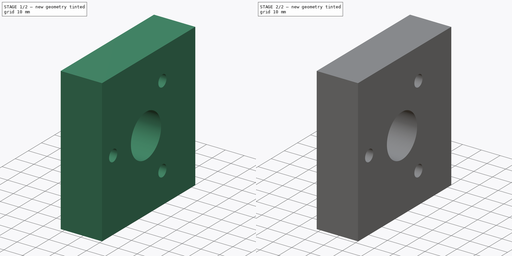
[diagram: build sequence overview — one tinted view per stage of 2, left to right]
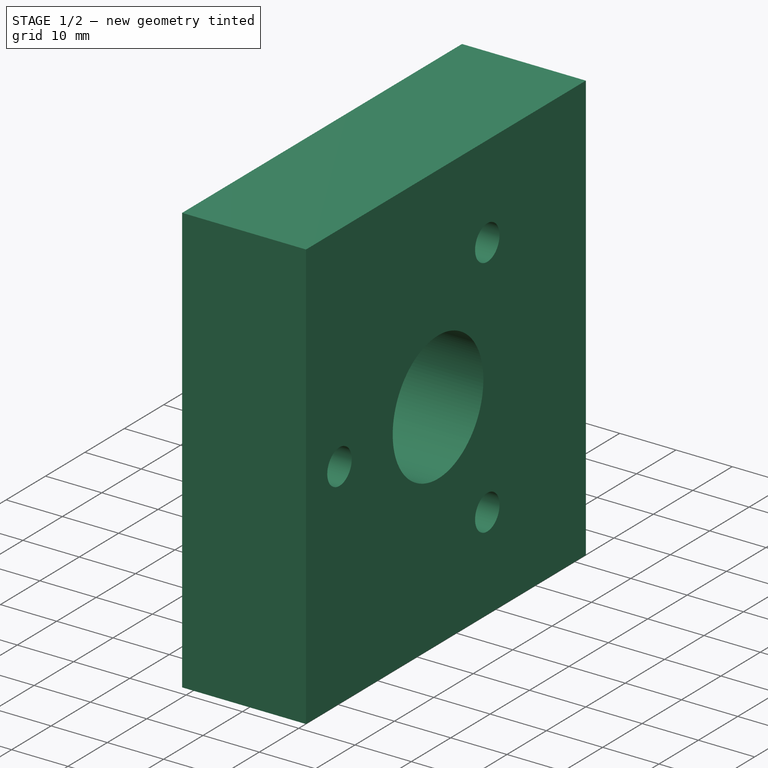
[diagram: stage 1 of 2 — iso view after this stage's code; geometry added in this stage tinted green]
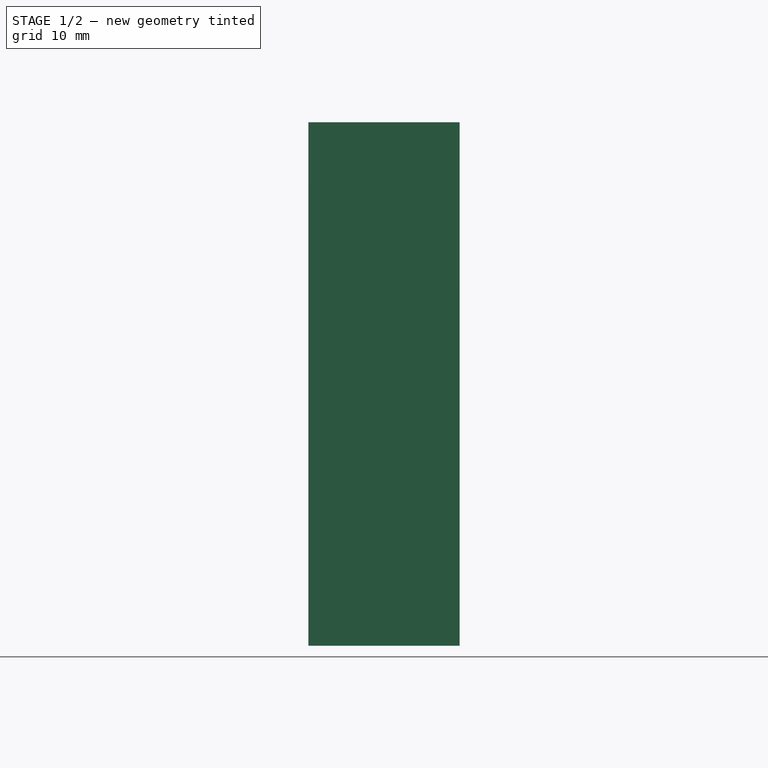
[diagram: stage 1 of 2 — front view after this stage's code; geometry added in this stage tinted green]
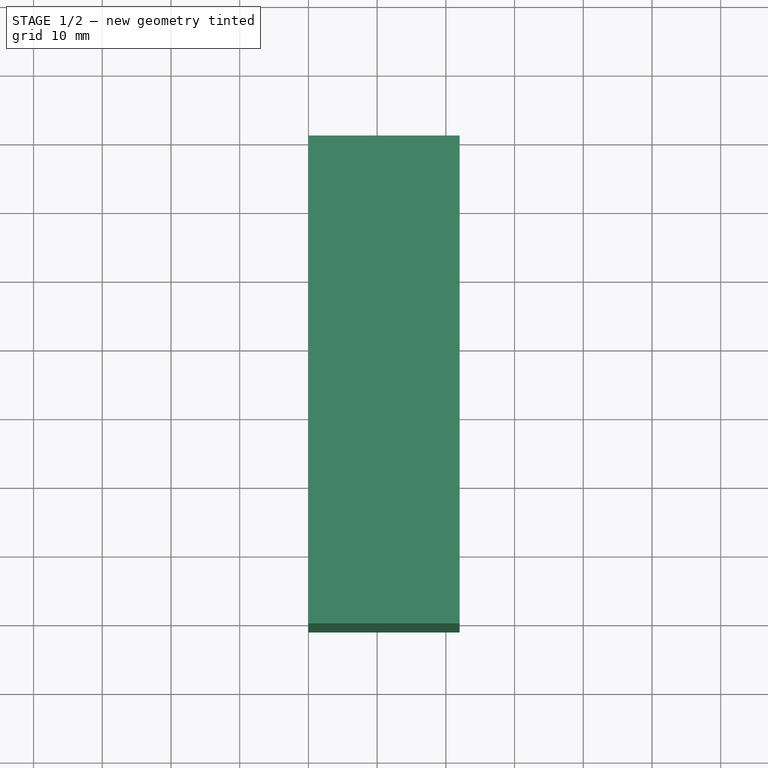
[diagram: stage 1 of 2 — top view after this stage's code; geometry added in this stage tinted green]
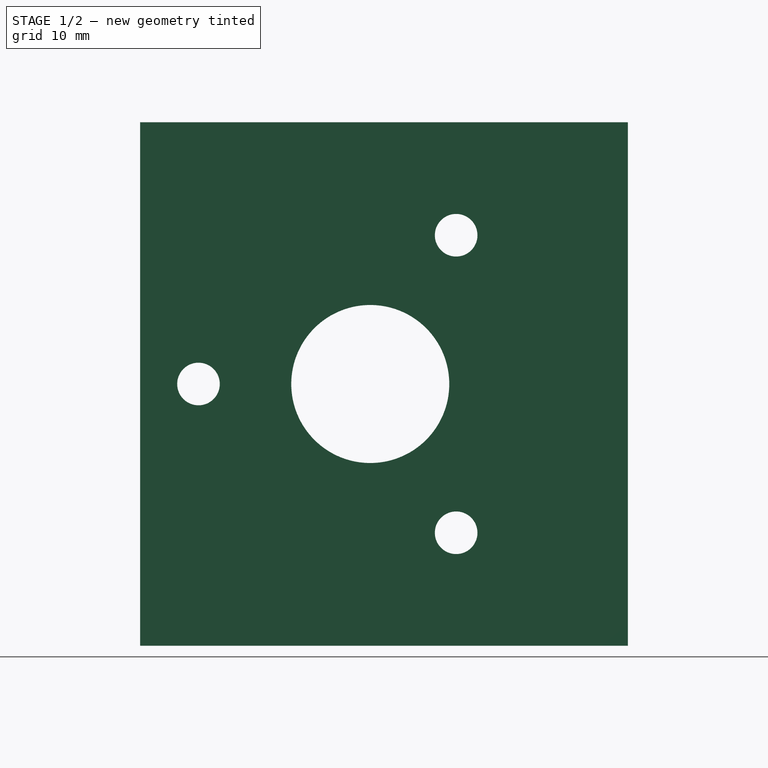
[diagram: stage 1 of 2 — right view after this stage's code; geometry added in this stage tinted green]
FCSTD DOCUMENT  (FreeCAD 0.15R4606 (Git))
Label: mini_motor_mount
License: All rights reserved
LicenseURL: http://en.wikipedia.org/wiki/All_rights_reserved
objects: Sketcher::SketchObject×4, PartDesign::Pocket×3, PartDesign::Pad×1
note: 12 computed .brp shape members not serialized (recipe doc carries the construction recipe); baked Part::Feature solids carry a one-line shape summary decoded from their .brp

FEATURE [Sketcher::SketchObject] Sketch005
  Placement = pos=(0,0,0) rot=(0.57735,0.57735,0.57735;2.0944rad)
  sketch-geometry (4):
    g0: LineSegment StartX=-71 StartY=76.2 StartZ=0 EndX=0 EndY=76.2 EndZ=0
    g1: LineSegment StartX=0 StartY=76.2 StartZ=0 EndX=0 EndY=0 EndZ=0
    g2: LineSegment StartX=0 StartY=0 StartZ=0 EndX=-71 EndY=0 EndZ=0
    g3: LineSegment StartX=-71 StartY=0 StartZ=0 EndX=-71 EndY=76.2 EndZ=0
  constraints (12):
    c: Coincident(g0,g1)
    c: Coincident(g1,g2)
    c: Coincident(g2,g3)
    c: Coincident(g3,g0)
    c: Horizontal(g0)
    c: Horizontal(g2)
    c: Vertical(g1)
    c: Vertical(g3)
    c: PointOnObject(g0,g-2)
    c: PointOnObject(g2,g-1)
    c: Distance(g1) = 76.2
    c: Distance(g0) = 71
FEATURE [PartDesign::Pad] Pad
  Length = 22
  Length2 = 100
  Placement = pos=(0,0,0) rot=(0.57735,0.57735,0.57735;2.0944rad)
  Sketch = -> Sketch005
  Type = 0
FEATURE [Sketcher::SketchObject] Sketch003  label="Motor Attach Screw Holes"
  Placement = pos=(22,0,0) rot=(0.57735,0.57735,0.57735;2.0944rad)
  Support = -> Pad [Face6]
  sketch-geometry (7):
    g0: Circle CenterX=-37.5 CenterY=38.1 CenterZ=0 NormalX=0 NormalY=0 NormalZ=1 Radius=11.5
    g1: Circle CenterX=-25 CenterY=16.4494 CenterZ=0 NormalX=0 NormalY=0 NormalZ=1 Radius=3.1
    g2: Circle CenterX=-25 CenterY=59.7506 CenterZ=0 NormalX=0 NormalY=0 NormalZ=1 Radius=3.1
    g3: Circle CenterX=-62.5 CenterY=38.1 CenterZ=0 NormalX=0 NormalY=0 NormalZ=1 Radius=3.1
    g4: LineSegment [constr] StartX=-25 StartY=16.4494 StartZ=0 EndX=-37.5 EndY=38.1 EndZ=0
    g5: LineSegment [constr] StartX=-37.5 StartY=38.1 StartZ=0 EndX=-25 EndY=59.7506 EndZ=0
    g6: LineSegment [constr] StartX=-37.5 StartY=38.1 StartZ=0 EndX=-62.5 EndY=38.1 EndZ=0
  constraints (18):
    c: Radius(g0) = 11.5
    c: Radius(g1) = 3.1
    c: Equal(g3,g1)
    c: Equal(g1,g2)
    c: Coincident(g0,g4)
    c: Coincident(g4,g1)
    c: Coincident(g0,g5)
    c: Coincident(g2,g5)
    c: Angle(g4,g5) = 2.0944
    c: Coincident(g0,g6)
    c: Coincident(g6,g3)
    c: Angle(g6,g4) = 2.0944
    c: Equal(g6,g4)
    c: Equal(g4,g5)
    c: Distance(g6) = 25
    c: Parallel(g6,g-1)
    c: DistanceY(g-1,g0) = 38.1
    c: DistanceX(g-1,g2) = -25
FEATURE [PartDesign::Pocket] Pocket
  Length = 30
  Placement = pos=(0,0,0) rot=(0.57735,0.57735,0.57735;2.0944rad)
  Sketch = -> Sketch003
  Type = 0
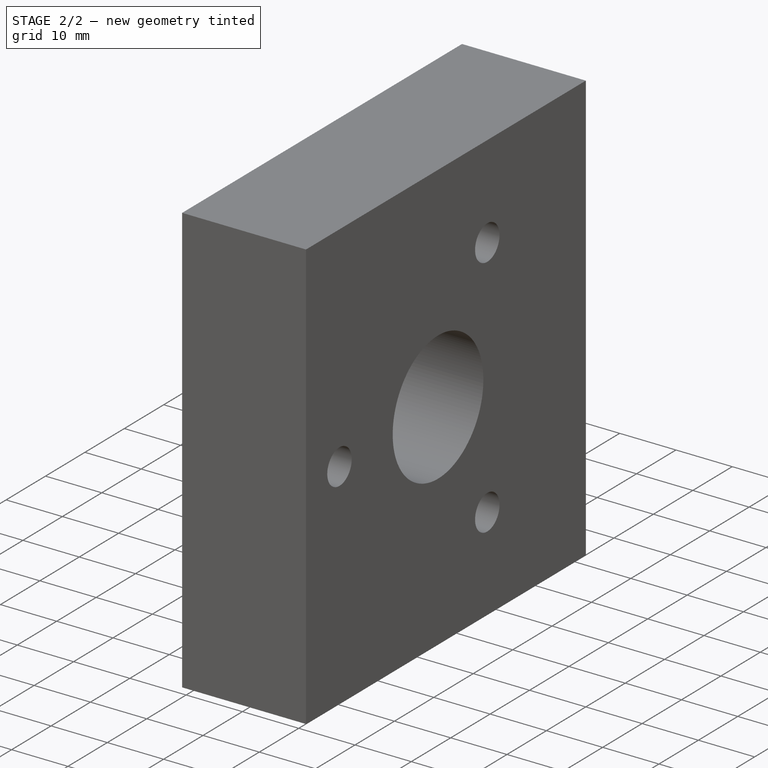
[diagram: stage 2 of 2 — iso view after this stage's code; geometry added in this stage tinted green]
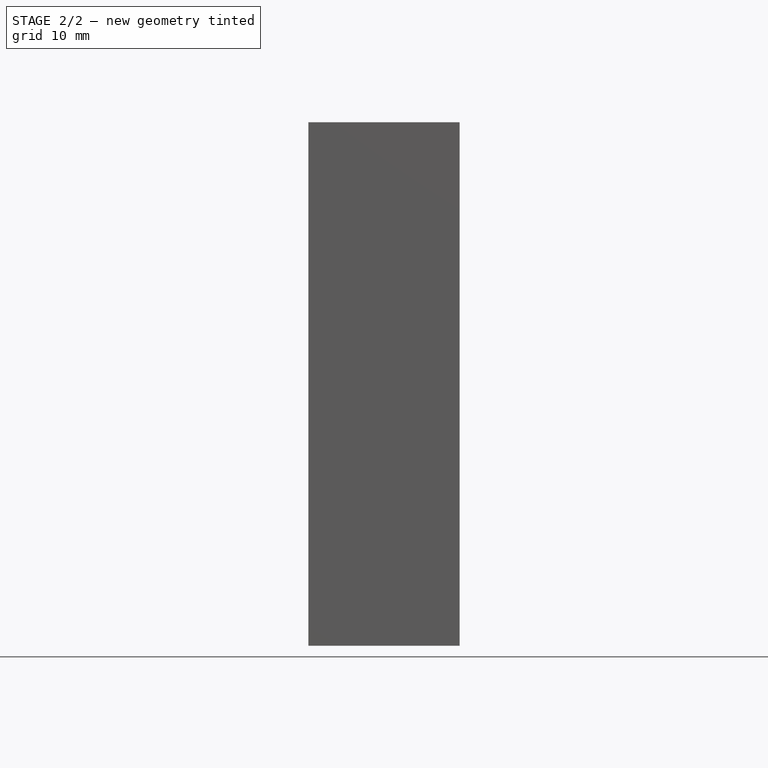
[diagram: stage 2 of 2 — front view after this stage's code; geometry added in this stage tinted green]
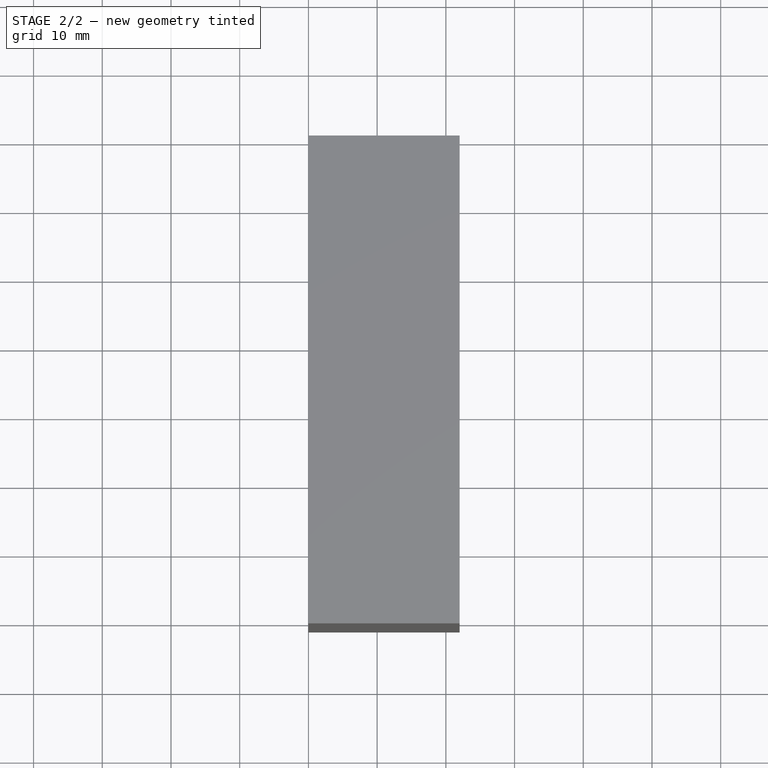
[diagram: stage 2 of 2 — top view after this stage's code; geometry added in this stage tinted green]
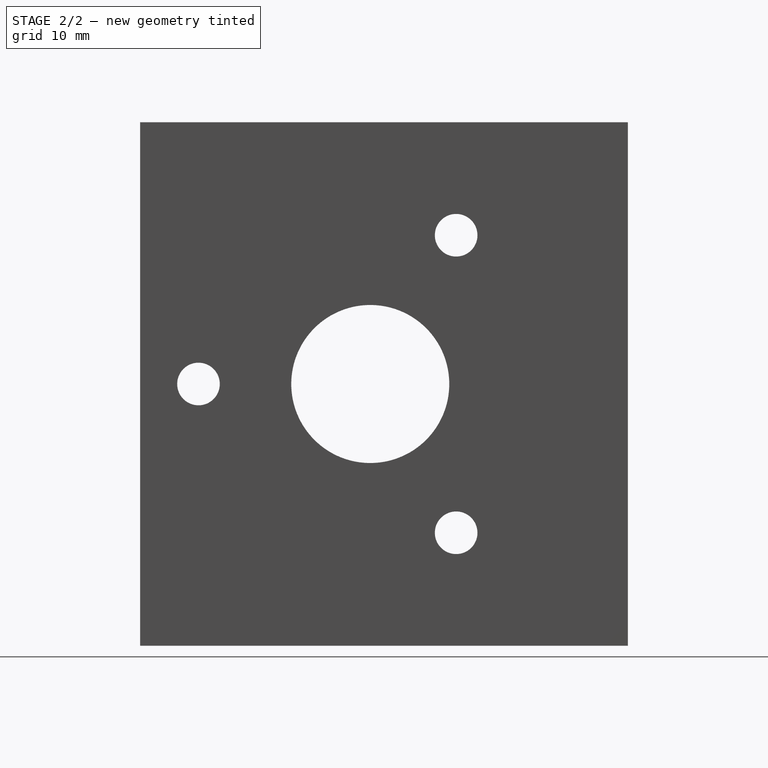
[diagram: stage 2 of 2 — right view after this stage's code; geometry added in this stage tinted green]
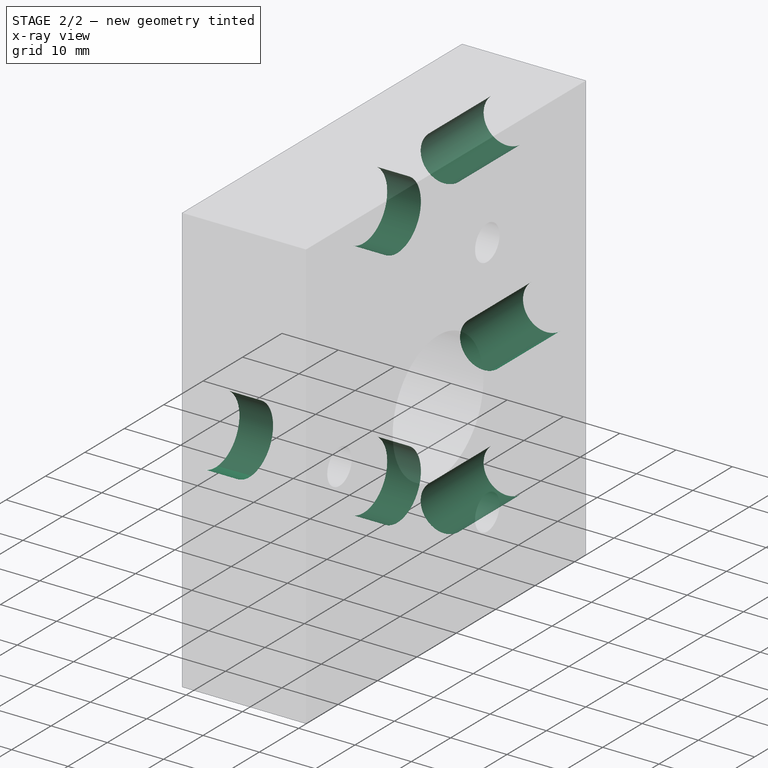
[diagram: stage 2 of 2 — x-ray composite at the iso view; earlier geometry ghosted, this stage's added geometry solid]
FEATURE [Sketcher::SketchObject] Sketch004  label="Top Screw Holes"
  Placement = pos=(0,0,0) rot=(0.57735,0.57735,0.57735;4.18879rad)
  Support = -> Pocket [Face3]
  sketch-geometry (3):
    g0: Circle CenterX=10 CenterY=8 CenterZ=0 NormalX=0 NormalY=0 NormalZ=1 Radius=4.15
    g1: Circle CenterX=66.2 CenterY=8 CenterZ=0 NormalX=0 NormalY=0 NormalZ=1 Radius=4.15
    g2: Circle CenterX=38.1 CenterY=15 CenterZ=0 NormalX=0 NormalY=0 NormalZ=1 Radius=4.15
  constraints (9):
    c: Equal(g1,g0)
    c: DistanceY(g-1,g0) = 8
    c: DistanceX(g-1,g0) = 10
    c: DistanceY(g0,g1) = 0
    c: Distance(g0,g1) = 56.2
    c: DistanceX(g0,g2) = 28.1
    c: DistanceY(g-1,g2) = 15
    c: Equal(g0,g2)
    c: Radius(g0) = 4.15
FEATURE [PartDesign::Pocket] Pocket001
  Length = 16
  Placement = pos=(0,0,0) rot=(0.57735,0.57735,0.57735;2.0944rad)
  Sketch = -> Sketch004
  Type = 0
FEATURE [Sketcher::SketchObject] Sketch  label="Motor Attach Screw Recesses"
  Placement = pos=(0,0,0) rot=(0.57735,0.57735,-0.57735;4.18879rad)
  Support = -> Pocket001 [Face4]
  sketch-geometry (6):
    g0: Circle CenterX=-25 CenterY=-59.7506 CenterZ=0 NormalX=0 NormalY=0 NormalZ=1 Radius=6
    g1: Circle CenterX=-25 CenterY=-16.4494 CenterZ=0 NormalX=0 NormalY=0 NormalZ=1 Radius=6
    g2: Circle CenterX=-62.5 CenterY=-38.1 CenterZ=0 NormalX=0 NormalY=0 NormalZ=1 Radius=6
    g3: LineSegment [constr] StartX=-25 StartY=-59.7506 StartZ=0 EndX=-37.5 EndY=-38.1 EndZ=0
    g4: LineSegment [constr] StartX=-37.5 StartY=-38.1 StartZ=0 EndX=-25 EndY=-16.4494 EndZ=0
    g5: LineSegment [constr] StartX=-37.5 StartY=-38.1 StartZ=0 EndX=-62.5 EndY=-38.1 EndZ=0
  constraints (16):
    c: Radius(g0) = 6
    c: Equal(g2,g0)
    c: Equal(g0,g1)
    c: Coincident(g3,g0)
    c: Coincident(g1,g4)
    c: Angle(g3,g4) = 2.0944
    c: Coincident(g5,g2)
    c: Angle(g5,g3) = 2.0944
    c: Equal(g5,g3)
    c: Equal(g3,g4)
    c: Distance(g5) = 25
    c: Parallel(g5,g-1)
    c: DistanceX(g-1,g1) = -25
    c: Coincident(g3,g4)
    c: Coincident(g3,g5)
    c: DistanceY(g-1,g2) = -38.1
FEATURE [PartDesign::Pocket] Pocket002
  Length = 6
  Placement = pos=(0,0,0) rot=(0.57735,0.57735,0.57735;2.0944rad)
  Sketch = -> Sketch
  Type = 0
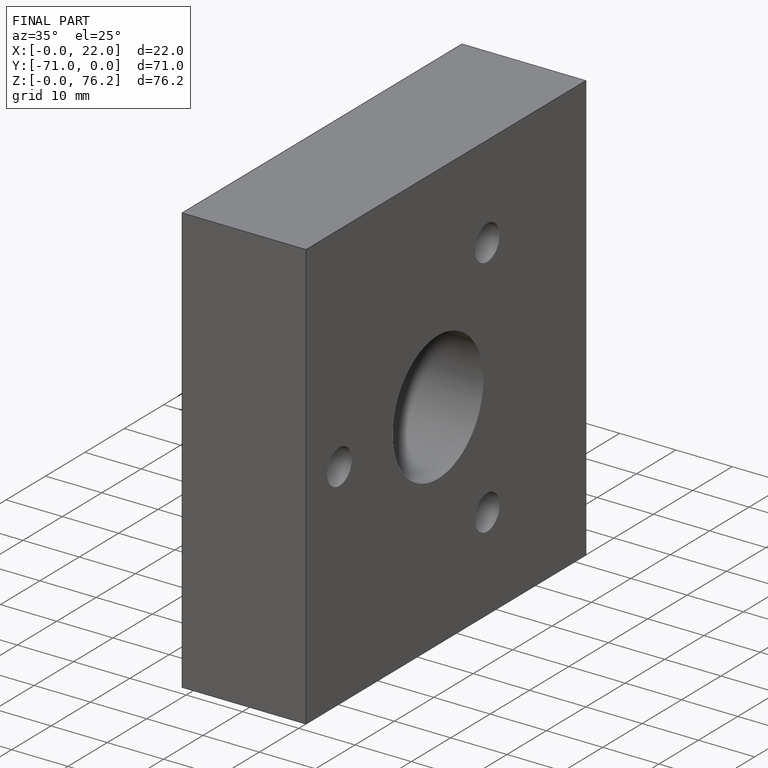
[diagram: finished part — iso view with bounding-box wireframe]
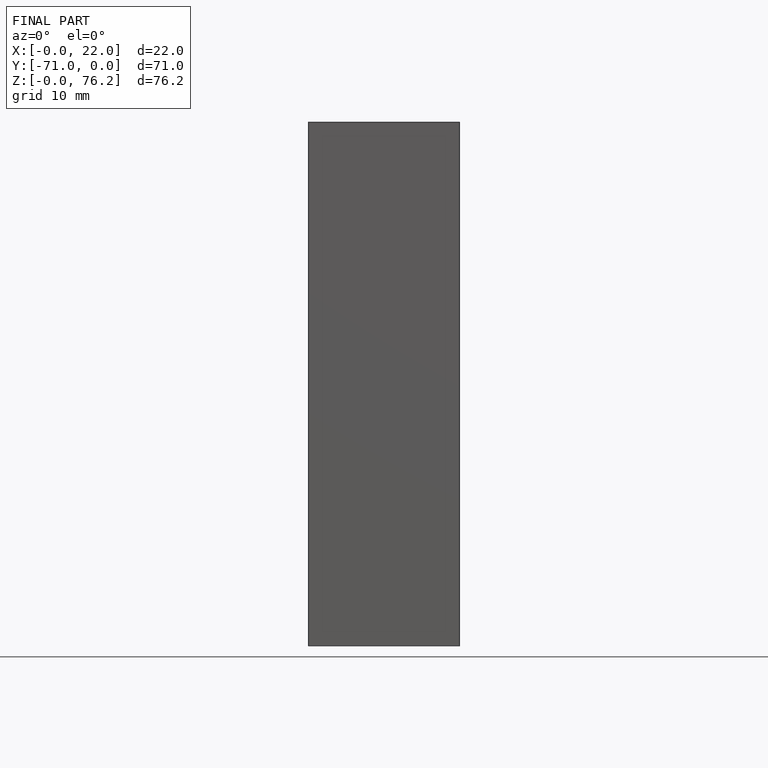
[diagram: finished part — front view with bounding-box wireframe]
